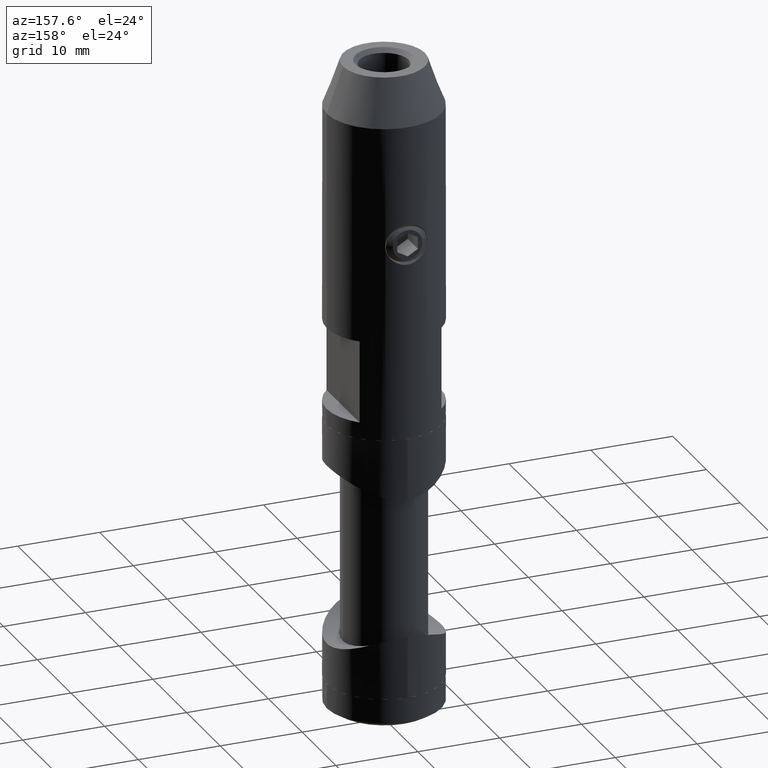
[diagram: clean part render]
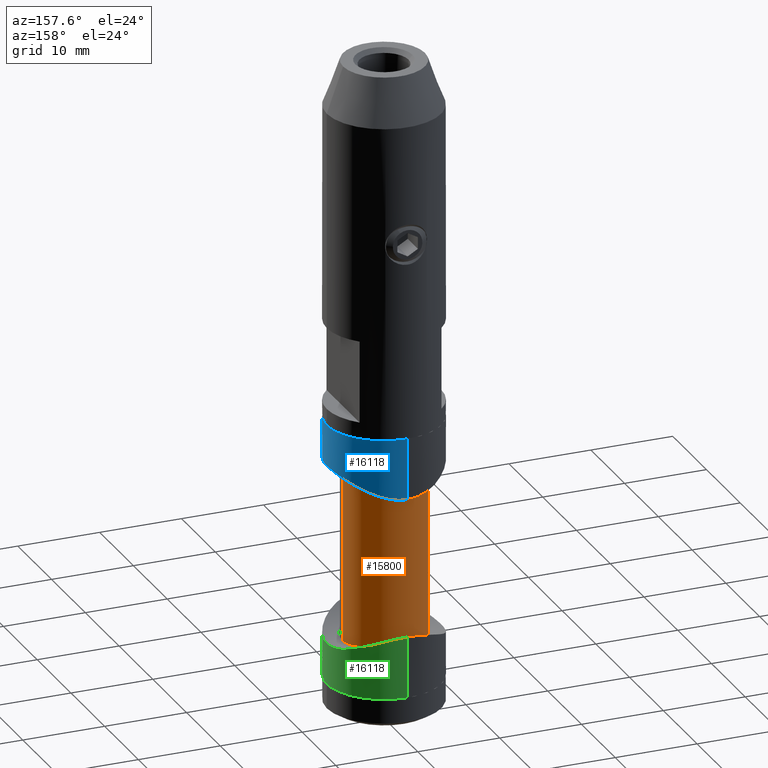
[diagram: same view with three faces highlighted in distinct colors, each labeled with its STEP entity id]
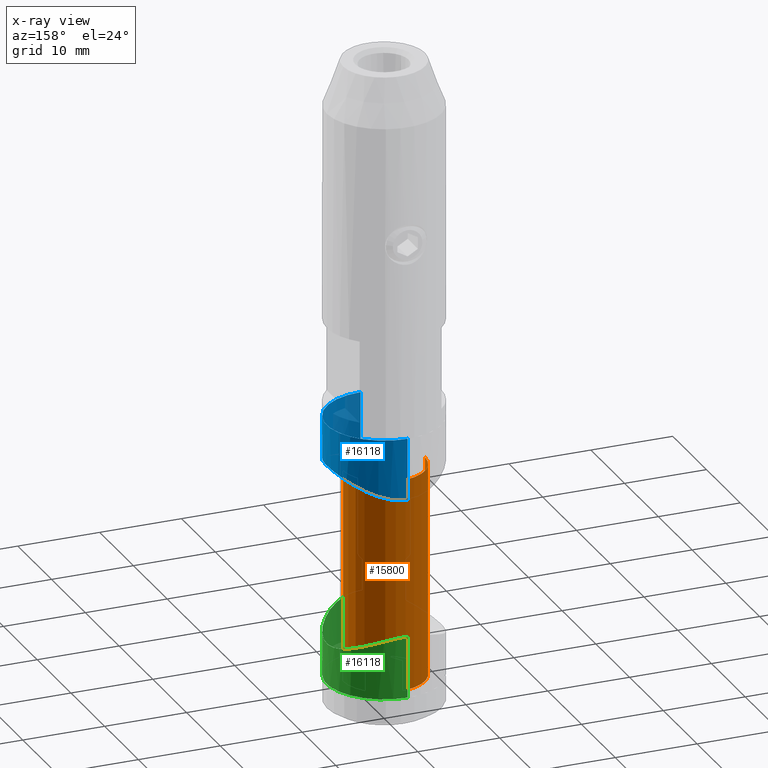
[diagram: x-ray of the same camera — body ghosted, the three highlighted faces saturated]
A machine part, auxiliary view with three faces highlighted in distinct colors.
The next image is the same camera in x-ray (body ghosted, the three faces saturated) — at least one of them is partly hidden behind the body in this view.
Their STEP definitions:

[orange] entity #15800 — the highlighted cylindrical surface (partial cylindrical patch) has radius 5 mm, axis along (0, 0, 1).
#774 = CARTESIAN_POINT ( 'NONE',  ( 5.000000000000000000, 0.000000000000000000, 12.49999999999999112 ) ) ;
#929 = AXIS2_PLACEMENT_3D ( 'NONE', #18799, #20074, #10749 ) ;
#963 = CIRCLE ( 'NONE', #12744, 5.000000000000000000 ) ;
#1121 = EDGE_CURVE ( 'NONE', #7482, #16117, #10236, .T. ) ;
#1878 = DIRECTION ( 'NONE',  ( 1.000000000000000000, 0.000000000000000000, 0.000000000000000000 ) ) ;
#2261 = DIRECTION ( 'NONE',  ( 0.000000000000000000, 0.000000000000000000, 1.000000000000000000 ) ) ;
#2368 = VERTEX_POINT ( 'NONE', #14557 ) ;
#2933 = VECTOR ( 'NONE', #2261, 1000.000000000000000 ) ;
#3041 = CARTESIAN_POINT ( 'NONE',  ( 0.000000000000000000, 0.000000000000000000, 12.49999999999999112 ) ) ;
#3773 = CARTESIAN_POINT ( 'NONE',  ( 5.000000000000000000, 0.000000000000000000, -13.49999999999999822 ) ) ;
#4458 = VERTEX_POINT ( 'NONE', #10079 ) ;
#5375 = DIRECTION ( 'NONE',  ( 0.000000000000000000, 0.000000000000000000, -1.000000000000000000 ) ) ;
#6379 = CYLINDRICAL_SURFACE ( 'NONE', #929, 5.000000000000000000 ) ;
#7482 = VERTEX_POINT ( 'NONE', #12807 ) ;
#7948 = ORIENTED_EDGE ( 'NONE', *, *, #1121, .T. ) ;
#8304 = FACE_OUTER_BOUND ( 'NONE', #12284, .T. ) ;
#9822 = AXIS2_PLACEMENT_3D ( 'NONE', #3041, #16843, #13986 ) ;
#9831 = DIRECTION ( 'NONE',  ( 0.000000000000000000, 0.000000000000000000, 1.000000000000000000 ) ) ;
#9927 = ORIENTED_EDGE ( 'NONE', *, *, #15953, .F. ) ;
#10079 = CARTESIAN_POINT ( 'NONE',  ( -5.000000000000000000, 6.123233995736766282E-16, -13.49999999999999822 ) ) ;
#10236 = CIRCLE ( 'NONE', #9822, 5.000000000000000000 ) ;
#10749 = DIRECTION ( 'NONE',  ( 1.000000000000000000, 0.000000000000000000, 0.000000000000000000 ) ) ;
#11467 = EDGE_CURVE ( 'NONE', #4458, #7482, #12278, .T. ) ;
#11748 = LINE ( 'NONE', #3773, #13692 ) ;
#11872 = EDGE_CURVE ( 'NONE', #4458, #2368, #963, .T. ) ;
#12278 = LINE ( 'NONE', #19497, #2933 ) ;
#12284 = EDGE_LOOP ( 'NONE', ( #16393, #16245, #7948, #9927 ) ) ;
#12744 = AXIS2_PLACEMENT_3D ( 'NONE', #13070, #5375, #1878 ) ;
#12807 = CARTESIAN_POINT ( 'NONE',  ( -5.000000000000000000, 6.123233995736766282E-16, 12.49999999999999112 ) ) ;
#13070 = CARTESIAN_POINT ( 'NONE',  ( 0.000000000000000000, 0.000000000000000000, -13.49999999999999822 ) ) ;
#13692 = VECTOR ( 'NONE', #9831, 1000.000000000000000 ) ;
#13986 = DIRECTION ( 'NONE',  ( 1.000000000000000000, 0.000000000000000000, 0.000000000000000000 ) ) ;
#14557 = CARTESIAN_POINT ( 'NONE',  ( 5.000000000000000000, 0.000000000000000000, -13.49999999999999822 ) ) ;
#15800 = ADVANCED_FACE ( 'NONE', ( #8304 ), #6379, .T. ) ;
#15953 = EDGE_CURVE ( 'NONE', #2368, #16117, #11748, .T. ) ;
#16117 = VERTEX_POINT ( 'NONE', #774 ) ;
#16245 = ORIENTED_EDGE ( 'NONE', *, *, #11467, .T. ) ;
#16393 = ORIENTED_EDGE ( 'NONE', *, *, #11872, .F. ) ;
#16843 = DIRECTION ( 'NONE',  ( 0.000000000000000000, 0.000000000000000000, -1.000000000000000000 ) ) ;
#18799 = CARTESIAN_POINT ( 'NONE',  ( 0.000000000000000000, 0.000000000000000000, -13.49999999999999822 ) ) ;
#19497 = CARTESIAN_POINT ( 'NONE',  ( -5.000000000000000000, 6.123233995736766282E-16, -13.49999999999999822 ) ) ;
#20074 = DIRECTION ( 'NONE',  ( 0.000000000000000000, 0.000000000000000000, 1.000000000000000000 ) ) ;

[blue] entity #16118 — the highlighted cylindrical surface (partial cylindrical patch) has radius 7 mm, axis along (0, -0, 1).
#685 = FACE_OUTER_BOUND ( 'NONE', #15722, .T. ) ;
#931 = CYLINDRICAL_SURFACE ( 'NONE', #10392, 7.000000000000254907 ) ;
#1000 = CARTESIAN_POINT ( 'NONE',  ( 0.9561356181228538587, -6.950147116260164459, 5.031903391544506832 ) ) ;
#1065 = CARTESIAN_POINT ( 'NONE',  ( -2.936049864269827836, -6.358660130344079953, 5.396817665741710179 ) ) ;
#1132 = CARTESIAN_POINT ( 'NONE',  ( -5.273991696881241253, -4.624345898174418323, 6.340300785909568582 ) ) ;
#1339 = CARTESIAN_POINT ( 'NONE',  ( -5.554878004119144563, -4.282654945670762103, 6.501104165803741175 ) ) ;
#1402 = CARTESIAN_POINT ( 'NONE',  ( -6.761740977554861587, -1.870689667826440639, 7.322816668642889049 ) ) ;
#1625 = B_SPLINE_CURVE_WITH_KNOTS ( 'NONE', 3,
 ( #13493, #2779, #7323, #19935, #11927, #13748, #4403, #15004, #2713, #4199, #5977, #7520, #10677, #13614, #18252, #18447, #18183, #1000, #11994, #9091, #2583, #13549, #15078, #8884, #10466, #1065, #12059, #2646, #4265, #7389, #18316, #8954, #19864, #1132, #1339, #20064, #16996, #12334, #1402, #2852, #7720, #15334 ),
 .UNSPECIFIED., .F., .F.,
 ( 4, 2, 2, 2, 2, 2, 2, 2, 2, 2, 2, 2, 2, 2, 2, 2, 2, 2, 2, 2, 4 ),
 ( 0.02253123587157023974, 0.02393527655227489434, 0.02463729689262722511, 0.02533931723297955241, 0.02674335791368420701, 0.02814739859438886507, 0.02955143927509352314, 0.03095547995579818121, 0.03235952063650283927, 0.03376356131720749387, 0.03446558165755982117, 0.03516760199791215541, 0.03657164267861681001, 0.03727366301896913731, 0.03797568335932146460, 0.03867770369967379190, 0.03937972404002612614, 0.04078376472073078074, 0.04218780540143544922, 0.04359184608214010381, 0.04499588676284476535 ),
 .UNSPECIFIED. ) ;
#2210 = ORIENTED_EDGE ( 'NONE', *, *, #8125, .F. ) ;
#2583 = CARTESIAN_POINT ( 'NONE',  ( -0.4616743109381308829, -6.988715196624761816, 5.007192627578020527 ) ) ;
#2646 = CARTESIAN_POINT ( 'NONE',  ( -3.545662890074149143, -6.039903269820232623, 5.584980927143774032 ) ) ;
#2713 = CARTESIAN_POINT ( 'NONE',  ( 6.056531478097463506, -3.537940262749728948, 6.812822254243739550 ) ) ;
#2779 = CARTESIAN_POINT ( 'NONE',  ( 6.999999999999996447, -0.4740943276049978117, 7.514718625761454440 ) ) ;
#2852 = CARTESIAN_POINT ( 'NONE',  ( -6.951047740780801121, -0.9505557249542421205, 7.473712008211712998 ) ) ;
#2983 = CARTESIAN_POINT ( 'NONE',  ( 0.000000000000000000, 0.000000000000000000, 0.000000000000000000 ) ) ;
#3000 = VERTEX_POINT ( 'NONE', #10652 ) ;
#3941 = EDGE_CURVE ( 'NONE', #14383, #3000, #7961, .T. ) ;
#4199 = CARTESIAN_POINT ( 'NONE',  ( 5.558983717407167902, -4.277416846365695413, 6.503500197077546119 ) ) ;
#4255 = LINE ( 'NONE', #11764, #12079 ) ;
#4265 = CARTESIAN_POINT ( 'NONE',  ( -3.738745410604529695, -5.922185817696358434, 5.652949233903943771 ) ) ;
#4403 = CARTESIAN_POINT ( 'NONE',  ( 6.538584528614772573, -2.509684823444015223, 7.153600790624825123 ) ) ;
#4598 = EDGE_CURVE ( 'NONE', #3000, #20067, #6269, .T. ) ;
#5580 = DIRECTION ( 'NONE',  ( -1.000000000000000000, -1.183291357831474618E-30, 0.000000000000000000 ) ) ;
#5977 = CARTESIAN_POINT ( 'NONE',  ( 5.277947180286361117, -4.619883079932325387, 6.342453332013024081 ) ) ;
#6072 = CARTESIAN_POINT ( 'NONE',  ( 7.000000000000004441, -5.723021685032325300E-14, 7.514718625761387827 ) ) ;
#6269 = CIRCLE ( 'NONE', #12649, 7.000000000000254907 ) ;
#6697 = ORIENTED_EDGE ( 'NONE', *, *, #3941, .T. ) ;
#7323 = CARTESIAN_POINT ( 'NONE',  ( 6.952353740326868703, -0.9398979421706252779, 7.474799345840276388 ) ) ;
#7389 = CARTESIAN_POINT ( 'NONE',  ( -4.110904691520238963, -5.670182071316340000, 5.795092385586124273 ) ) ;
#7520 = CARTESIAN_POINT ( 'NONE',  ( 4.647052587015751079, -5.254041145979729599, 6.023535880095139738 ) ) ;
#7720 = CARTESIAN_POINT ( 'NONE',  ( -7.000000000000284217, -0.4763624378593324660, 7.514718625761431348 ) ) ;
#7961 = LINE ( 'NONE', #14088, #19929 ) ;
#8125 = EDGE_CURVE ( 'NONE', #8932, #20067, #4255, .T. ) ;
#8884 = CARTESIAN_POINT ( 'NONE',  ( -1.857958556001904737, -6.765409035154463346, 5.148022972862459135 ) ) ;
#8932 = VERTEX_POINT ( 'NONE', #6072 ) ;
#8954 = CARTESIAN_POINT ( 'NONE',  ( -4.634687890405571942, -5.250686637709595317, 6.022263489474741327 ) ) ;
#9091 = CARTESIAN_POINT ( 'NONE',  ( -0.2271689663048469532, -7.000260248264503993, 4.999834387531060464 ) ) ;
#9613 = EDGE_CURVE ( 'NONE', #8932, #14383, #1625, .T. ) ;
#10392 = AXIS2_PLACEMENT_3D ( 'NONE', #11915, #19525, #5580 ) ;
#10466 = CARTESIAN_POINT ( 'NONE',  ( -2.300155943045375739, -6.627297524066506185, 5.234279387161443253 ) ) ;
#10652 = CARTESIAN_POINT ( 'NONE',  ( -7.000000000000000000, -8.282903418160179087E-30, 2.159148023590378122E-34 ) ) ;
#10677 = CARTESIAN_POINT ( 'NONE',  ( 4.302957743383328371, -5.539326587374739042, 5.868803495781969026 ) ) ;
#11764 = CARTESIAN_POINT ( 'NONE',  ( 7.000000000000254907, 8.572527594031867620E-16, 15.00000000000000000 ) ) ;
#11915 = CARTESIAN_POINT ( 'NONE',  ( 0.000000000000000000, 4.819526838371378783E-34, 15.00000000000000000 ) ) ;
#11927 = CARTESIAN_POINT ( 'NONE',  ( 6.753785770811216338, -1.854607853229240932, 7.317040327690201629 ) ) ;
#11974 = DIRECTION ( 'NONE',  ( -3.084497176557682421E-35, -3.084497176557682421E-35, -1.000000000000000000 ) ) ;
#11994 = CARTESIAN_POINT ( 'NONE',  ( 0.4779855654310720681, -6.999466188930153265, 5.000339697825916474 ) ) ;
#12059 = CARTESIAN_POINT ( 'NONE',  ( -3.144431679818662229, -6.258171158556381286, 5.456902873018733224 ) ) ;
#12079 = VECTOR ( 'NONE', #11974, 1000.000000000000000 ) ;
#12334 = CARTESIAN_POINT ( 'NONE',  ( -6.624192190383780598, -2.307918029003276583, 7.215481015150577271 ) ) ;
#12649 = AXIS2_PLACEMENT_3D ( 'NONE', #2983, #14004, #14069 ) ;
#13493 = CARTESIAN_POINT ( 'NONE',  ( 7.000000000000004441, -5.723021685032325300E-14, 7.514718625761387827 ) ) ;
#13549 = CARTESIAN_POINT ( 'NONE',  ( -0.9295944337245134470, -6.941983683191890186, 5.036843005532409379 ) ) ;
#13614 = CARTESIAN_POINT ( 'NONE',  ( 3.563861619915402290, -6.041396753817215526, 5.585804001147470998 ) ) ;
#13748 = CARTESIAN_POINT ( 'NONE',  ( 6.617060154661993820, -2.295148674237948327, 7.212399313888086638 ) ) ;
#14004 = DIRECTION ( 'NONE',  ( 3.084497176557682421E-35, 3.084497176557682421E-35, 1.000000000000000000 ) ) ;
#14069 = DIRECTION ( 'NONE',  ( 1.000000000000000000, 1.183291357831474618E-30, 2.445028249710268746E-35 ) ) ;
#14088 = CARTESIAN_POINT ( 'NONE',  ( -7.000000000000254907, -8.282557552136786819E-30, 15.00000000000000000 ) ) ;
#14383 = VERTEX_POINT ( 'NONE', #15428 ) ;
#15004 = CARTESIAN_POINT ( 'NONE',  ( 6.273866739672759429, -3.137677219901788828, 6.961965779511344543 ) ) ;
#15078 = CARTESIAN_POINT ( 'NONE',  ( -1.164191950391297414, -6.906543958800002159, 5.059295683047658088 ) ) ;
#15334 = CARTESIAN_POINT ( 'NONE',  ( -7.000000000000284217, -9.244463733058732095E-30, 7.514718625761432236 ) ) ;
#15428 = CARTESIAN_POINT ( 'NONE',  ( -7.000000000000284217, -9.244463733058732095E-30, 7.514718625761432236 ) ) ;
#15722 = EDGE_LOOP ( 'NONE', ( #2210, #16936, #6697, #19429 ) ) ;
#15751 = DIRECTION ( 'NONE',  ( -3.084497176557682421E-35, -3.084497176557682421E-35, -1.000000000000000000 ) ) ;
#16118 = ADVANCED_FACE ( 'NONE', ( #685 ), #931, .T. ) ;
#16936 = ORIENTED_EDGE ( 'NONE', *, *, #9613, .T. ) ;
#16996 = CARTESIAN_POINT ( 'NONE',  ( -6.270293628163780220, -3.144809313829456610, 6.959473810284622530 ) ) ;
#18183 = CARTESIAN_POINT ( 'NONE',  ( 1.872241291340982938, -6.761172443067881233, 5.150665869296223498 ) ) ;
#18252 = CARTESIAN_POINT ( 'NONE',  ( 3.165976961786824972, -6.260269788629083898, 5.456274816559064433 ) ) ;
#18316 = CARTESIAN_POINT ( 'NONE',  ( -4.289978481396708787, -5.535894384654330480, 5.869272368477476576 ) ) ;
#18447 = CARTESIAN_POINT ( 'NONE',  ( 2.313820538208837707, -6.622735270713296707, 5.237110732547023417 ) ) ;
#18837 = CARTESIAN_POINT ( 'NONE',  ( 7.000000000000000000, 8.572527594031556020E-16, -2.159148023590378122E-34 ) ) ;
#19429 = ORIENTED_EDGE ( 'NONE', *, *, #4598, .T. ) ;
#19525 = DIRECTION ( 'NONE',  ( -3.084497176557682421E-35, -3.084497176557682421E-35, -1.000000000000000000 ) ) ;
#19864 = CARTESIAN_POINT ( 'NONE',  ( -4.801024735240244645, -5.099024646223536017, 6.101446781323081936 ) ) ;
#19929 = VECTOR ( 'NONE', #15751, 1000.000000000000000 ) ;
#19935 = CARTESIAN_POINT ( 'NONE',  ( 6.812274545733001396, -1.627136497544569682, 7.363074465144524794 ) ) ;
#20064 = CARTESIAN_POINT ( 'NONE',  ( -6.052226204783508479, -3.545188428060873420, 6.809991856603720528 ) ) ;
#20067 = VERTEX_POINT ( 'NONE', #18837 ) ;

[green] entity #16118 — the highlighted cylindrical surface (partial cylindrical patch) has radius 7 mm, axis along (0, -0, -1).
#685 = FACE_OUTER_BOUND ( 'NONE', #15722, .T. ) ;
#931 = CYLINDRICAL_SURFACE ( 'NONE', #10392, 7.000000000000254907 ) ;
#1000 = CARTESIAN_POINT ( 'NONE',  ( 0.9561356181228538587, -6.950147116260164459, 5.031903391544506832 ) ) ;
#1065 = CARTESIAN_POINT ( 'NONE',  ( -2.936049864269827836, -6.358660130344079953, 5.396817665741710179 ) ) ;
#1132 = CARTESIAN_POINT ( 'NONE',  ( -5.273991696881241253, -4.624345898174418323, 6.340300785909568582 ) ) ;
#1339 = CARTESIAN_POINT ( 'NONE',  ( -5.554878004119144563, -4.282654945670762103, 6.501104165803741175 ) ) ;
#1402 = CARTESIAN_POINT ( 'NONE',  ( -6.761740977554861587, -1.870689667826440639, 7.322816668642889049 ) ) ;
#1625 = B_SPLINE_CURVE_WITH_KNOTS ( 'NONE', 3,
 ( #13493, #2779, #7323, #19935, #11927, #13748, #4403, #15004, #2713, #4199, #5977, #7520, #10677, #13614, #18252, #18447, #18183, #1000, #11994, #9091, #2583, #13549, #15078, #8884, #10466, #1065, #12059, #2646, #4265, #7389, #18316, #8954, #19864, #1132, #1339, #20064, #16996, #12334, #1402, #2852, #7720, #15334 ),
 .UNSPECIFIED., .F., .F.,
 ( 4, 2, 2, 2, 2, 2, 2, 2, 2, 2, 2, 2, 2, 2, 2, 2, 2, 2, 2, 2, 4 ),
 ( 0.02253123587157023974, 0.02393527655227489434, 0.02463729689262722511, 0.02533931723297955241, 0.02674335791368420701, 0.02814739859438886507, 0.02955143927509352314, 0.03095547995579818121, 0.03235952063650283927, 0.03376356131720749387, 0.03446558165755982117, 0.03516760199791215541, 0.03657164267861681001, 0.03727366301896913731, 0.03797568335932146460, 0.03867770369967379190, 0.03937972404002612614, 0.04078376472073078074, 0.04218780540143544922, 0.04359184608214010381, 0.04499588676284476535 ),
 .UNSPECIFIED. ) ;
#2210 = ORIENTED_EDGE ( 'NONE', *, *, #8125, .F. ) ;
#2583 = CARTESIAN_POINT ( 'NONE',  ( -0.4616743109381308829, -6.988715196624761816, 5.007192627578020527 ) ) ;
#2646 = CARTESIAN_POINT ( 'NONE',  ( -3.545662890074149143, -6.039903269820232623, 5.584980927143774032 ) ) ;
#2713 = CARTESIAN_POINT ( 'NONE',  ( 6.056531478097463506, -3.537940262749728948, 6.812822254243739550 ) ) ;
#2779 = CARTESIAN_POINT ( 'NONE',  ( 6.999999999999996447, -0.4740943276049978117, 7.514718625761454440 ) ) ;
#2852 = CARTESIAN_POINT ( 'NONE',  ( -6.951047740780801121, -0.9505557249542421205, 7.473712008211712998 ) ) ;
#2983 = CARTESIAN_POINT ( 'NONE',  ( 0.000000000000000000, 0.000000000000000000, 0.000000000000000000 ) ) ;
#3000 = VERTEX_POINT ( 'NONE', #10652 ) ;
#3941 = EDGE_CURVE ( 'NONE', #14383, #3000, #7961, .T. ) ;
#4199 = CARTESIAN_POINT ( 'NONE',  ( 5.558983717407167902, -4.277416846365695413, 6.503500197077546119 ) ) ;
#4255 = LINE ( 'NONE', #11764, #12079 ) ;
#4265 = CARTESIAN_POINT ( 'NONE',  ( -3.738745410604529695, -5.922185817696358434, 5.652949233903943771 ) ) ;
#4403 = CARTESIAN_POINT ( 'NONE',  ( 6.538584528614772573, -2.509684823444015223, 7.153600790624825123 ) ) ;
#4598 = EDGE_CURVE ( 'NONE', #3000, #20067, #6269, .T. ) ;
#5580 = DIRECTION ( 'NONE',  ( -1.000000000000000000, -1.183291357831474618E-30, 0.000000000000000000 ) ) ;
#5977 = CARTESIAN_POINT ( 'NONE',  ( 5.277947180286361117, -4.619883079932325387, 6.342453332013024081 ) ) ;
#6072 = CARTESIAN_POINT ( 'NONE',  ( 7.000000000000004441, -5.723021685032325300E-14, 7.514718625761387827 ) ) ;
#6269 = CIRCLE ( 'NONE', #12649, 7.000000000000254907 ) ;
#6697 = ORIENTED_EDGE ( 'NONE', *, *, #3941, .T. ) ;
#7323 = CARTESIAN_POINT ( 'NONE',  ( 6.952353740326868703, -0.9398979421706252779, 7.474799345840276388 ) ) ;
#7389 = CARTESIAN_POINT ( 'NONE',  ( -4.110904691520238963, -5.670182071316340000, 5.795092385586124273 ) ) ;
#7520 = CARTESIAN_POINT ( 'NONE',  ( 4.647052587015751079, -5.254041145979729599, 6.023535880095139738 ) ) ;
#7720 = CARTESIAN_POINT ( 'NONE',  ( -7.000000000000284217, -0.4763624378593324660, 7.514718625761431348 ) ) ;
#7961 = LINE ( 'NONE', #14088, #19929 ) ;
#8125 = EDGE_CURVE ( 'NONE', #8932, #20067, #4255, .T. ) ;
#8884 = CARTESIAN_POINT ( 'NONE',  ( -1.857958556001904737, -6.765409035154463346, 5.148022972862459135 ) ) ;
#8932 = VERTEX_POINT ( 'NONE', #6072 ) ;
#8954 = CARTESIAN_POINT ( 'NONE',  ( -4.634687890405571942, -5.250686637709595317, 6.022263489474741327 ) ) ;
#9091 = CARTESIAN_POINT ( 'NONE',  ( -0.2271689663048469532, -7.000260248264503993, 4.999834387531060464 ) ) ;
#9613 = EDGE_CURVE ( 'NONE', #8932, #14383, #1625, .T. ) ;
#10392 = AXIS2_PLACEMENT_3D ( 'NONE', #11915, #19525, #5580 ) ;
#10466 = CARTESIAN_POINT ( 'NONE',  ( -2.300155943045375739, -6.627297524066506185, 5.234279387161443253 ) ) ;
#10652 = CARTESIAN_POINT ( 'NONE',  ( -7.000000000000000000, -8.282903418160179087E-30, 2.159148023590378122E-34 ) ) ;
#10677 = CARTESIAN_POINT ( 'NONE',  ( 4.302957743383328371, -5.539326587374739042, 5.868803495781969026 ) ) ;
#11764 = CARTESIAN_POINT ( 'NONE',  ( 7.000000000000254907, 8.572527594031867620E-16, 15.00000000000000000 ) ) ;
#11915 = CARTESIAN_POINT ( 'NONE',  ( 0.000000000000000000, 4.819526838371378783E-34, 15.00000000000000000 ) ) ;
#11927 = CARTESIAN_POINT ( 'NONE',  ( 6.753785770811216338, -1.854607853229240932, 7.317040327690201629 ) ) ;
#11974 = DIRECTION ( 'NONE',  ( -3.084497176557682421E-35, -3.084497176557682421E-35, -1.000000000000000000 ) ) ;
#11994 = CARTESIAN_POINT ( 'NONE',  ( 0.4779855654310720681, -6.999466188930153265, 5.000339697825916474 ) ) ;
#12059 = CARTESIAN_POINT ( 'NONE',  ( -3.144431679818662229, -6.258171158556381286, 5.456902873018733224 ) ) ;
#12079 = VECTOR ( 'NONE', #11974, 1000.000000000000000 ) ;
#12334 = CARTESIAN_POINT ( 'NONE',  ( -6.624192190383780598, -2.307918029003276583, 7.215481015150577271 ) ) ;
#12649 = AXIS2_PLACEMENT_3D ( 'NONE', #2983, #14004, #14069 ) ;
#13493 = CARTESIAN_POINT ( 'NONE',  ( 7.000000000000004441, -5.723021685032325300E-14, 7.514718625761387827 ) ) ;
#13549 = CARTESIAN_POINT ( 'NONE',  ( -0.9295944337245134470, -6.941983683191890186, 5.036843005532409379 ) ) ;
#13614 = CARTESIAN_POINT ( 'NONE',  ( 3.563861619915402290, -6.041396753817215526, 5.585804001147470998 ) ) ;
#13748 = CARTESIAN_POINT ( 'NONE',  ( 6.617060154661993820, -2.295148674237948327, 7.212399313888086638 ) ) ;
#14004 = DIRECTION ( 'NONE',  ( 3.084497176557682421E-35, 3.084497176557682421E-35, 1.000000000000000000 ) ) ;
#14069 = DIRECTION ( 'NONE',  ( 1.000000000000000000, 1.183291357831474618E-30, 2.445028249710268746E-35 ) ) ;
#14088 = CARTESIAN_POINT ( 'NONE',  ( -7.000000000000254907, -8.282557552136786819E-30, 15.00000000000000000 ) ) ;
#14383 = VERTEX_POINT ( 'NONE', #15428 ) ;
#15004 = CARTESIAN_POINT ( 'NONE',  ( 6.273866739672759429, -3.137677219901788828, 6.961965779511344543 ) ) ;
#15078 = CARTESIAN_POINT ( 'NONE',  ( -1.164191950391297414, -6.906543958800002159, 5.059295683047658088 ) ) ;
#15334 = CARTESIAN_POINT ( 'NONE',  ( -7.000000000000284217, -9.244463733058732095E-30, 7.514718625761432236 ) ) ;
#15428 = CARTESIAN_POINT ( 'NONE',  ( -7.000000000000284217, -9.244463733058732095E-30, 7.514718625761432236 ) ) ;
#15722 = EDGE_LOOP ( 'NONE', ( #2210, #16936, #6697, #19429 ) ) ;
#15751 = DIRECTION ( 'NONE',  ( -3.084497176557682421E-35, -3.084497176557682421E-35, -1.000000000000000000 ) ) ;
#16118 = ADVANCED_FACE ( 'NONE', ( #685 ), #931, .T. ) ;
#16936 = ORIENTED_EDGE ( 'NONE', *, *, #9613, .T. ) ;
#16996 = CARTESIAN_POINT ( 'NONE',  ( -6.270293628163780220, -3.144809313829456610, 6.959473810284622530 ) ) ;
#18183 = CARTESIAN_POINT ( 'NONE',  ( 1.872241291340982938, -6.761172443067881233, 5.150665869296223498 ) ) ;
#18252 = CARTESIAN_POINT ( 'NONE',  ( 3.165976961786824972, -6.260269788629083898, 5.456274816559064433 ) ) ;
#18316 = CARTESIAN_POINT ( 'NONE',  ( -4.289978481396708787, -5.535894384654330480, 5.869272368477476576 ) ) ;
#18447 = CARTESIAN_POINT ( 'NONE',  ( 2.313820538208837707, -6.622735270713296707, 5.237110732547023417 ) ) ;
#18837 = CARTESIAN_POINT ( 'NONE',  ( 7.000000000000000000, 8.572527594031556020E-16, -2.159148023590378122E-34 ) ) ;
#19429 = ORIENTED_EDGE ( 'NONE', *, *, #4598, .T. ) ;
#19525 = DIRECTION ( 'NONE',  ( -3.084497176557682421E-35, -3.084497176557682421E-35, -1.000000000000000000 ) ) ;
#19864 = CARTESIAN_POINT ( 'NONE',  ( -4.801024735240244645, -5.099024646223536017, 6.101446781323081936 ) ) ;
#19929 = VECTOR ( 'NONE', #15751, 1000.000000000000000 ) ;
#19935 = CARTESIAN_POINT ( 'NONE',  ( 6.812274545733001396, -1.627136497544569682, 7.363074465144524794 ) ) ;
#20064 = CARTESIAN_POINT ( 'NONE',  ( -6.052226204783508479, -3.545188428060873420, 6.809991856603720528 ) ) ;
#20067 = VERTEX_POINT ( 'NONE', #18837 ) ;